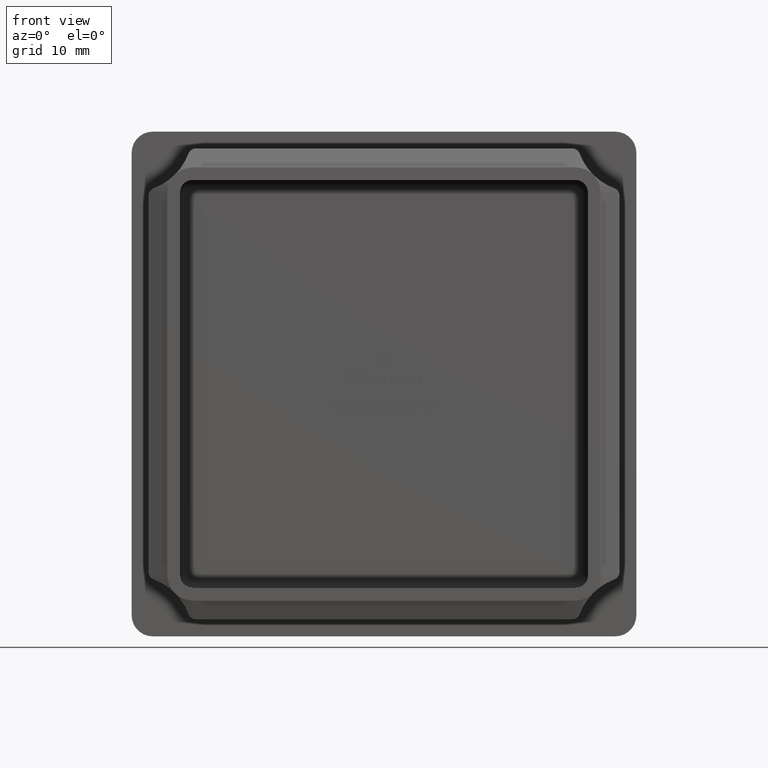
[diagram: clean part render]
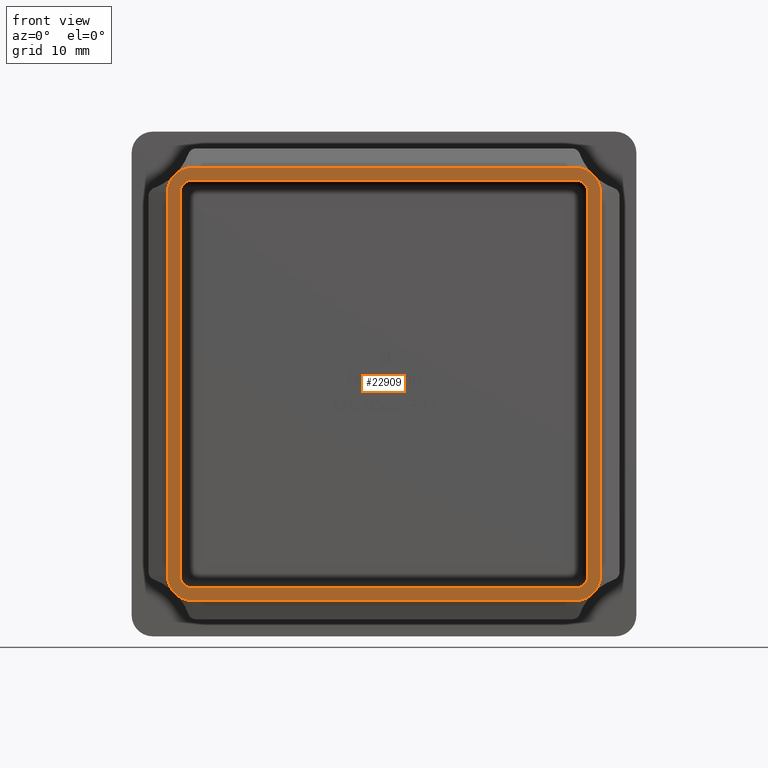
[diagram: same view with one face highlighted and labeled with its STEP entity id]
A machine part, front view. The second image highlights one B-rep face of the part: STEP entity #22909.
In plain terms, the highlighted planar face has unit normal (0, -1, 0).
Its self-contained STEP definition (entity closure, byte-faithful):
#49 = CARTESIAN_POINT ( 'NONE',  ( 24.24999999999999289, -14.00000000000000000, 22.75000000000000355 ) ) ;
#176 = LINE ( 'NONE', #14217, #15621 ) ;
#432 = ORIENTED_EDGE ( 'NONE', *, *, #5771, .T. ) ;
#561 = DIRECTION ( 'NONE',  ( 0.000000000000000000, 0.000000000000000000, 1.000000000000000000 ) ) ;
#596 = LINE ( 'NONE', #49, #16630 ) ;
#724 = VERTEX_POINT ( 'NONE', #7741 ) ;
#803 = DIRECTION ( 'NONE',  ( 0.000000000000000000, 0.000000000000000000, 1.000000000000000000 ) ) ;
#828 = CARTESIAN_POINT ( 'NONE',  ( 24.25000000000000000, -14.00000000000000000, -22.75000000000000000 ) ) ;
#937 = EDGE_CURVE ( 'NONE', #12267, #17358, #20369, .T. ) ;
#1061 = VERTEX_POINT ( 'NONE', #1108 ) ;
#1108 = CARTESIAN_POINT ( 'NONE',  ( 25.75000000000000000, -14.00000000000000000, 22.75000000000000355 ) ) ;
#1656 = ORIENTED_EDGE ( 'NONE', *, *, #3462, .F. ) ;
#1716 = VECTOR ( 'NONE', #9772, 1000.000000000000000 ) ;
#1741 = DIRECTION ( 'NONE',  ( 0.000000000000000000, 0.000000000000000000, 1.000000000000000000 ) ) ;
#1859 = LINE ( 'NONE', #10489, #2404 ) ;
#2055 = LINE ( 'NONE', #22713, #20298 ) ;
#2217 = ORIENTED_EDGE ( 'NONE', *, *, #8504, .T. ) ;
#2345 = EDGE_CURVE ( 'NONE', #9794, #724, #11749, .T. ) ;
#2404 = VECTOR ( 'NONE', #5321, 1000.000000000000000 ) ;
#2487 = CIRCLE ( 'NONE', #19855, 1.500000000000001332 ) ;
#2537 = ORIENTED_EDGE ( 'NONE', *, *, #10405, .T. ) ;
#2875 = ORIENTED_EDGE ( 'NONE', *, *, #7333, .F. ) ;
#3004 = ORIENTED_EDGE ( 'NONE', *, *, #4267, .T. ) ;
#3110 = ORIENTED_EDGE ( 'NONE', *, *, #10617, .T. ) ;
#3257 = FACE_OUTER_BOUND ( 'NONE', #20879, .T. ) ;
#3387 = DIRECTION ( 'NONE',  ( -1.000000000000000000, -0.000000000000000000, 7.625158136161789453E-17 ) ) ;
#3462 = EDGE_CURVE ( 'NONE', #19541, #4881, #176, .T. ) ;
#3469 = CARTESIAN_POINT ( 'NONE',  ( -25.75000000000000000, -14.00000000000000000, -22.75000000000000000 ) ) ;
#3521 = EDGE_CURVE ( 'NONE', #9132, #5816, #2055, .T. ) ;
#3532 = PLANE ( 'NONE',  #18354 ) ;
#3552 = ORIENTED_EDGE ( 'NONE', *, *, #937, .F. ) ;
#3606 = CARTESIAN_POINT ( 'NONE',  ( 22.75000000000000355, -14.00000000000000000, -22.75000000000000000 ) ) ;
#3626 = ORIENTED_EDGE ( 'NONE', *, *, #7946, .F. ) ;
#3734 = DIRECTION ( 'NONE',  ( 0.000000000000000000, 0.000000000000000000, 1.000000000000000000 ) ) ;
#4267 = EDGE_CURVE ( 'NONE', #15813, #1061, #5352, .T. ) ;
#4288 = CARTESIAN_POINT ( 'NONE',  ( -25.75000000000000000, -14.00000000000000000, 22.75000000000000711 ) ) ;
#4671 = CARTESIAN_POINT ( 'NONE',  ( 24.24999999999999289, -14.00000000000000000, 22.75000000000000355 ) ) ;
#4881 = VERTEX_POINT ( 'NONE', #6439 ) ;
#5037 = EDGE_CURVE ( 'NONE', #6841, #19541, #17239, .T. ) ;
#5321 = DIRECTION ( 'NONE',  ( 1.525031627232357644E-16, -0.000000000000000000, -1.000000000000000000 ) ) ;
#5352 = LINE ( 'NONE', #18273, #13094 ) ;
#5771 = EDGE_CURVE ( 'NONE', #13637, #9794, #11691, .T. ) ;
#5816 = VERTEX_POINT ( 'NONE', #22373 ) ;
#5986 = VERTEX_POINT ( 'NONE', #6835 ) ;
#6026 = ORIENTED_EDGE ( 'NONE', *, *, #5037, .F. ) ;
#6276 = AXIS2_PLACEMENT_3D ( 'NONE', #19135, #6731, #20939 ) ;
#6439 = CARTESIAN_POINT ( 'NONE',  ( 22.75000000000000355, -14.00000000000000000, -24.25000000000000000 ) ) ;
#6731 = DIRECTION ( 'NONE',  ( 0.000000000000000000, -1.000000000000000000, 0.000000000000000000 ) ) ;
#6785 = CARTESIAN_POINT ( 'NONE',  ( -22.75000000000000355, -14.00000000000000000, 22.75000000000000711 ) ) ;
#6835 = CARTESIAN_POINT ( 'NONE',  ( 22.75000000000000355, -14.00000000000000000, -25.75000000000000355 ) ) ;
#6841 = VERTEX_POINT ( 'NONE', #13429 ) ;
#7108 = CARTESIAN_POINT ( 'NONE',  ( -24.25000000000000000, -14.00000000000000000, 22.75000000000000711 ) ) ;
#7333 = EDGE_CURVE ( 'NONE', #13237, #15449, #596, .T. ) ;
#7489 = CARTESIAN_POINT ( 'NONE',  ( -22.75000000000000355, -14.00000000000000000, 22.75000000000000711 ) ) ;
#7662 = DIRECTION ( 'NONE',  ( 0.000000000000000000, -1.000000000000000000, 0.000000000000000000 ) ) ;
#7741 = CARTESIAN_POINT ( 'NONE',  ( -22.74999999999999645, -14.00000000000000000, -25.75000000000000355 ) ) ;
#7934 = DIRECTION ( 'NONE',  ( -7.625158136161789453E-17, -0.000000000000000000, 1.000000000000000000 ) ) ;
#7946 = EDGE_CURVE ( 'NONE', #15449, #12267, #9681, .T. ) ;
#8037 = AXIS2_PLACEMENT_3D ( 'NONE', #20253, #9741, #803 ) ;
#8127 = EDGE_CURVE ( 'NONE', #4881, #13237, #2487, .T. ) ;
#8504 = EDGE_CURVE ( 'NONE', #5816, #13637, #10199, .T. ) ;
#8516 = LINE ( 'NONE', #9384, #13207 ) ;
#9132 = VERTEX_POINT ( 'NONE', #15133 ) ;
#9384 = CARTESIAN_POINT ( 'NONE',  ( -22.74999999999999645, -14.00000000000000000, -25.75000000000000355 ) ) ;
#9675 = AXIS2_PLACEMENT_3D ( 'NONE', #14306, #21349, #17700 ) ;
#9679 = CARTESIAN_POINT ( 'NONE',  ( 25.75000000000000355, -14.00000000000000000, -22.75000000000000000 ) ) ;
#9681 = CIRCLE ( 'NONE', #8037, 1.499999999999997780 ) ;
#9741 = DIRECTION ( 'NONE',  ( 0.000000000000000000, -1.000000000000000000, 0.000000000000000000 ) ) ;
#9772 = DIRECTION ( 'NONE',  ( 0.000000000000000000, -0.000000000000000000, -1.000000000000000000 ) ) ;
#9794 = VERTEX_POINT ( 'NONE', #3469 ) ;
#10199 = CIRCLE ( 'NONE', #11578, 2.999999999999999112 ) ;
#10405 = EDGE_CURVE ( 'NONE', #724, #5986, #8516, .T. ) ;
#10454 = CARTESIAN_POINT ( 'NONE',  ( -22.74999999999999645, -14.00000000000000000, -22.75000000000000000 ) ) ;
#10489 = CARTESIAN_POINT ( 'NONE',  ( -24.25000000000000000, -14.00000000000000000, 22.75000000000000711 ) ) ;
#10617 = EDGE_CURVE ( 'NONE', #1061, #9132, #21516, .T. ) ;
#10644 = AXIS2_PLACEMENT_3D ( 'NONE', #18151, #7662, #561 ) ;
#11214 = EDGE_CURVE ( 'NONE', #17358, #20742, #22066, .T. ) ;
#11306 = AXIS2_PLACEMENT_3D ( 'NONE', #6785, #13879, #1741 ) ;
#11578 = AXIS2_PLACEMENT_3D ( 'NONE', #7489, #14436, #21554 ) ;
#11691 = LINE ( 'NONE', #4288, #1716 ) ;
#11749 = CIRCLE ( 'NONE', #18035, 3.000000000000002665 ) ;
#12214 = CIRCLE ( 'NONE', #6276, 3.000000000000002665 ) ;
#12267 = VERTEX_POINT ( 'NONE', #16314 ) ;
#12329 = VECTOR ( 'NONE', #21006, 1000.000000000000000 ) ;
#12471 = ORIENTED_EDGE ( 'NONE', *, *, #3521, .T. ) ;
#12493 = EDGE_CURVE ( 'NONE', #20742, #6841, #1859, .T. ) ;
#12731 = ORIENTED_EDGE ( 'NONE', *, *, #19310, .T. ) ;
#13094 = VECTOR ( 'NONE', #7934, 1000.000000000000000 ) ;
#13207 = VECTOR ( 'NONE', #20118, 1000.000000000000000 ) ;
#13237 = VERTEX_POINT ( 'NONE', #828 ) ;
#13429 = CARTESIAN_POINT ( 'NONE',  ( -24.24999999999999289, -14.00000000000000000, -22.75000000000000000 ) ) ;
#13637 = VERTEX_POINT ( 'NONE', #22042 ) ;
#13879 = DIRECTION ( 'NONE',  ( 0.000000000000000000, -1.000000000000000000, 0.000000000000000000 ) ) ;
#14048 = DIRECTION ( 'NONE',  ( 0.000000000000000000, -0.000000000000000000, -1.000000000000000000 ) ) ;
#14144 = ORIENTED_EDGE ( 'NONE', *, *, #8127, .F. ) ;
#14217 = CARTESIAN_POINT ( 'NONE',  ( -22.74999999999999645, -14.00000000000000000, -24.24999999999999645 ) ) ;
#14306 = CARTESIAN_POINT ( 'NONE',  ( 22.74999999999999645, -14.00000000000000000, 22.75000000000000355 ) ) ;
#14436 = DIRECTION ( 'NONE',  ( 0.000000000000000000, -1.000000000000000000, 0.000000000000000000 ) ) ;
#15133 = CARTESIAN_POINT ( 'NONE',  ( 22.74999999999999645, -14.00000000000000000, 25.75000000000000711 ) ) ;
#15449 = VERTEX_POINT ( 'NONE', #4671 ) ;
#15621 = VECTOR ( 'NONE', #15692, 1000.000000000000000 ) ;
#15692 = DIRECTION ( 'NONE',  ( 1.000000000000000000, 0.000000000000000000, -7.625158136161789453E-17 ) ) ;
#15813 = VERTEX_POINT ( 'NONE', #9679 ) ;
#15982 = DIRECTION ( 'NONE',  ( 0.000000000000000000, -1.000000000000000000, 0.000000000000000000 ) ) ;
#16314 = CARTESIAN_POINT ( 'NONE',  ( 22.74999999999999645, -14.00000000000000000, 24.25000000000000000 ) ) ;
#16630 = VECTOR ( 'NONE', #22809, 1000.000000000000000 ) ;
#16696 = ORIENTED_EDGE ( 'NONE', *, *, #11214, .F. ) ;
#16864 = CARTESIAN_POINT ( 'NONE',  ( 22.75000000000000355, -14.00000000000000000, -22.75000000000000000 ) ) ;
#17093 = DIRECTION ( 'NONE',  ( 0.000000000000000000, 0.000000000000000000, -1.000000000000000000 ) ) ;
#17239 = CIRCLE ( 'NONE', #10644, 1.499999999999997780 ) ;
#17358 = VERTEX_POINT ( 'NONE', #21867 ) ;
#17434 = CARTESIAN_POINT ( 'NONE',  ( -22.75000000000000355, -14.00000000000000000, 24.25000000000000355 ) ) ;
#17700 = DIRECTION ( 'NONE',  ( 0.000000000000000000, 0.000000000000000000, 1.000000000000000000 ) ) ;
#18035 = AXIS2_PLACEMENT_3D ( 'NONE', #10454, #19645, #3734 ) ;
#18151 = CARTESIAN_POINT ( 'NONE',  ( -22.74999999999999645, -14.00000000000000000, -22.75000000000000000 ) ) ;
#18273 = CARTESIAN_POINT ( 'NONE',  ( 25.75000000000000000, -14.00000000000000000, 22.75000000000000355 ) ) ;
#18354 = AXIS2_PLACEMENT_3D ( 'NONE', #3606, #15982, #14048 ) ;
#18519 = CARTESIAN_POINT ( 'NONE',  ( -22.74999999999999645, -14.00000000000000000, -24.24999999999999645 ) ) ;
#18918 = DIRECTION ( 'NONE',  ( 0.000000000000000000, -1.000000000000000000, 0.000000000000000000 ) ) ;
#19135 = CARTESIAN_POINT ( 'NONE',  ( 22.75000000000000355, -14.00000000000000000, -22.75000000000000000 ) ) ;
#19310 = EDGE_CURVE ( 'NONE', #5986, #15813, #12214, .T. ) ;
#19541 = VERTEX_POINT ( 'NONE', #18519 ) ;
#19645 = DIRECTION ( 'NONE',  ( 0.000000000000000000, -1.000000000000000000, 0.000000000000000000 ) ) ;
#19779 = ORIENTED_EDGE ( 'NONE', *, *, #12493, .F. ) ;
#19855 = AXIS2_PLACEMENT_3D ( 'NONE', #16864, #18918, #17093 ) ;
#20118 = DIRECTION ( 'NONE',  ( 1.000000000000000000, 0.000000000000000000, 0.000000000000000000 ) ) ;
#20253 = CARTESIAN_POINT ( 'NONE',  ( 22.74999999999999645, -14.00000000000000000, 22.75000000000000355 ) ) ;
#20272 = EDGE_LOOP ( 'NONE', ( #19779, #16696, #3552, #3626, #2875, #14144, #1656, #6026 ) ) ;
#20298 = VECTOR ( 'NONE', #3387, 1000.000000000000000 ) ;
#20369 = LINE ( 'NONE', #17434, #12329 ) ;
#20713 = FACE_BOUND ( 'NONE', #20272, .T. ) ;
#20742 = VERTEX_POINT ( 'NONE', #7108 ) ;
#20879 = EDGE_LOOP ( 'NONE', ( #12731, #3004, #3110, #12471, #2217, #432, #22404, #2537 ) ) ;
#20939 = DIRECTION ( 'NONE',  ( 0.000000000000000000, 0.000000000000000000, -1.000000000000000000 ) ) ;
#21006 = DIRECTION ( 'NONE',  ( -1.000000000000000000, -0.000000000000000000, -0.000000000000000000 ) ) ;
#21349 = DIRECTION ( 'NONE',  ( 0.000000000000000000, -1.000000000000000000, 0.000000000000000000 ) ) ;
#21516 = CIRCLE ( 'NONE', #9675, 3.000000000000002665 ) ;
#21554 = DIRECTION ( 'NONE',  ( 0.000000000000000000, 0.000000000000000000, 1.000000000000000000 ) ) ;
#21867 = CARTESIAN_POINT ( 'NONE',  ( -22.75000000000000355, -14.00000000000000000, 24.25000000000000355 ) ) ;
#22042 = CARTESIAN_POINT ( 'NONE',  ( -25.75000000000000000, -14.00000000000000000, 22.75000000000000711 ) ) ;
#22066 = CIRCLE ( 'NONE', #11306, 1.499999999999997780 ) ;
#22373 = CARTESIAN_POINT ( 'NONE',  ( -22.75000000000000355, -14.00000000000000000, 25.75000000000000711 ) ) ;
#22404 = ORIENTED_EDGE ( 'NONE', *, *, #2345, .T. ) ;
#22713 = CARTESIAN_POINT ( 'NONE',  ( -22.75000000000000355, -14.00000000000000000, 25.75000000000001066 ) ) ;
#22809 = DIRECTION ( 'NONE',  ( -1.525031627232357891E-16, -0.000000000000000000, 1.000000000000000000 ) ) ;
#22909 = ADVANCED_FACE ( 'NONE', ( #3257, #20713 ), #3532, .T. ) ;